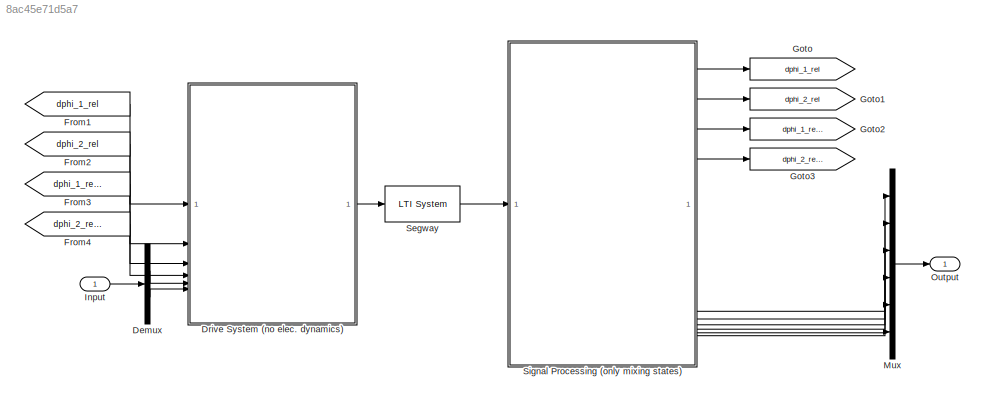
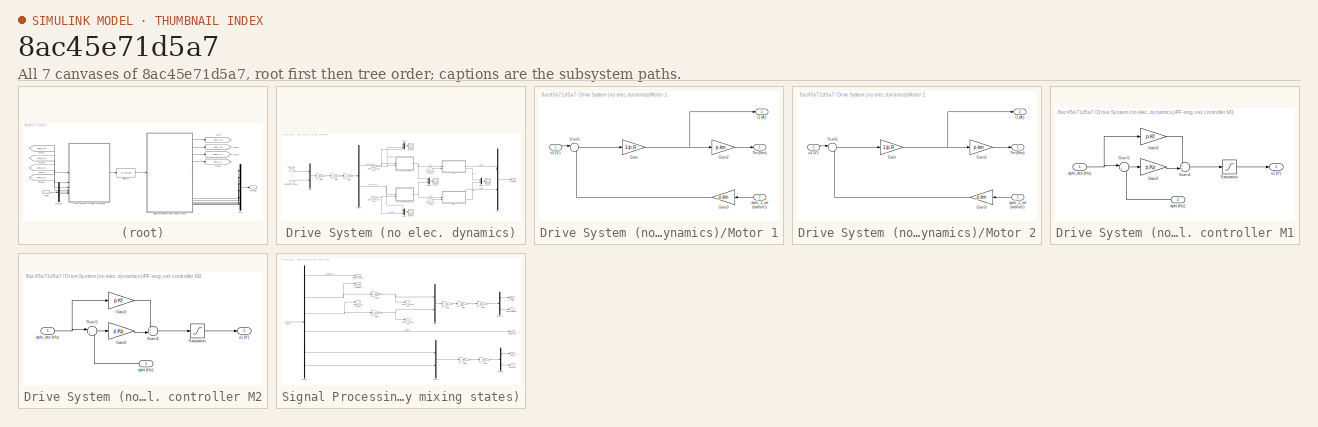
[diagram: thumbnail index - all 7 canvases of the model, root first then tree order]
MODEL slx_8ac45e71d5a7
KIND model
CONFIG AbsTol = auto
CONFIG EnableMultiTasking = off
CONFIG FixedStep = auto
CONFIG MaxStep = auto
CONFIG MinStep = auto
CONFIG RelTol = 1e-3
CONFIG SampleTimeConstraint = Unconstrained
CONFIG SolverName = VariableStepAuto
CONFIG StartTime = 0.0
CONFIG StopTime = 10.0
BLOCK [Demux] Demux
  Outputs = 2
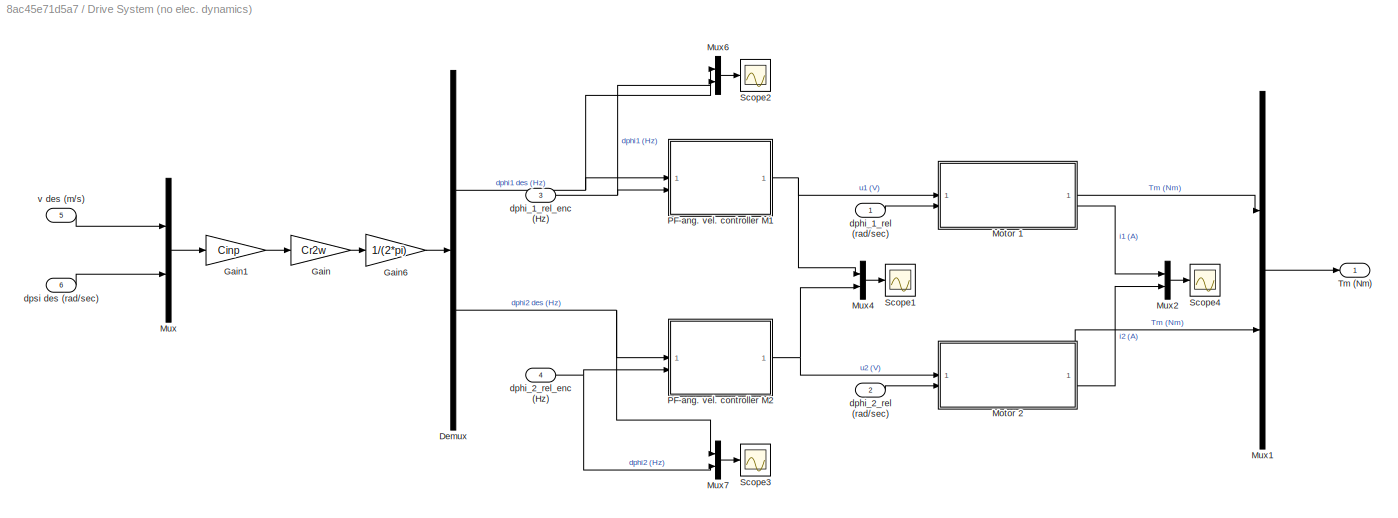
BLOCK [SubSystem] Drive System (no elec. dynamics)
BLOCK [Demux] Drive System (no elec. dynamics)/Demux
  Outputs = 2
BLOCK [Gain] Drive System (no elec. dynamics)/Gain
  Gain = Cr2w
  Multiplication = Matrix(K*u)
BLOCK [Gain] Drive System (no elec. dynamics)/Gain1
  Gain = Cinp
  Multiplication = Matrix(K*u)
BLOCK [Gain] Drive System (no elec. dynamics)/Gain6
  Gain = 1/(2*pi)
BLOCK [SubSystem] Drive System (no elec. dynamics)/Motor 1
BLOCK [Gain] Drive System (no elec. dynamics)/Motor 1/Gain
  Gain = 1/p.R
BLOCK [Gain] Drive System (no elec. dynamics)/Motor 1/Gain2
  Gain = p.km
BLOCK [Gain] Drive System (no elec. dynamics)/Motor 1/Gain3
  Gain = p.km
  NameLocation = top
BLOCK [Sum] Drive System (no elec. dynamics)/Motor 1/Sum5
  Inputs = |+-
BLOCK [Outport] Drive System (no elec. dynamics)/Motor 1/Tm (Nm)
BLOCK [Inport] Drive System (no elec. dynamics)/Motor 1/dphi_1_rel (rad//sec)
  Port = 2
BLOCK [Outport] Drive System (no elec. dynamics)/Motor 1/i1 (A)
  Port = 2
BLOCK [Inport] Drive System (no elec. dynamics)/Motor 1/u1 (V)
BLOCK [SubSystem] Drive System (no elec. dynamics)/Motor 2
BLOCK [Gain] Drive System (no elec. dynamics)/Motor 2/Gain
  Gain = 1/p.R
BLOCK [Gain] Drive System (no elec. dynamics)/Motor 2/Gain2
  Gain = p.km
BLOCK [Gain] Drive System (no elec. dynamics)/Motor 2/Gain3
  Gain = p.km
  NameLocation = top
BLOCK [Sum] Drive System (no elec. dynamics)/Motor 2/Sum5
  Inputs = |+-
BLOCK [Outport] Drive System (no elec. dynamics)/Motor 2/Tm (Nm)
BLOCK [Inport] Drive System (no elec. dynamics)/Motor 2/dphi_1_rel (rad//sec)
  Port = 2
BLOCK [Outport] Drive System (no elec. dynamics)/Motor 2/i1 (A)
  Port = 2
BLOCK [Inport] Drive System (no elec. dynamics)/Motor 2/u1 (V)
BLOCK [Mux] Drive System (no elec. dynamics)/Mux
  DisplayOption = bar
  Inputs = 2
BLOCK [Mux] Drive System (no elec. dynamics)/Mux1
  DisplayOption = bar
  Inputs = 2
BLOCK [Mux] Drive System (no elec. dynamics)/Mux2
  DisplayOption = bar
  Inputs = 2
BLOCK [Mux] Drive System (no elec. dynamics)/Mux4
  DisplayOption = bar
  Inputs = 2
BLOCK [Mux] Drive System (no elec. dynamics)/Mux6
  DisplayOption = bar
  Inputs = 2
BLOCK [Mux] Drive System (no elec. dynamics)/Mux7
  DisplayOption = bar
  Inputs = 2
BLOCK [SubSystem] Drive System (no elec. dynamics)/PF-ang. vel. controller M1
BLOCK [Gain] Drive System (no elec. dynamics)/PF-ang. vel. controller M1/Gain2
  Gain = p.Kp
BLOCK [Gain] Drive System (no elec. dynamics)/PF-ang. vel. controller M1/Gain3
  Gain = p.Kf
BLOCK [Saturate] Drive System (no elec. dynamics)/PF-ang. vel. controller M1/Saturation
  LowerLimit = p.u_min
  UpperLimit = p.u_max
BLOCK [Sum] Drive System (no elec. dynamics)/PF-ang. vel. controller M1/Sum4
  Inputs = ++|
BLOCK [Sum] Drive System (no elec. dynamics)/PF-ang. vel. controller M1/Sum5
  Inputs = |+-
BLOCK [Inport] Drive System (no elec. dynamics)/PF-ang. vel. controller M1/dphi (Hz)
  Port = 2
BLOCK [Inport] Drive System (no elec. dynamics)/PF-ang. vel. controller M1/dphi_des (Hz)
BLOCK [Outport] Drive System (no elec. dynamics)/PF-ang. vel. controller M1/u1 (V)
BLOCK [SubSystem] Drive System (no elec. dynamics)/PF-ang. vel. controller M2
BLOCK [Gain] Drive System (no elec. dynamics)/PF-ang. vel. controller M2/Gain2
  Gain = p.Kp
BLOCK [Gain] Drive System (no elec. dynamics)/PF-ang. vel. controller M2/Gain3
  Gain = p.Kf
BLOCK [Saturate] Drive System (no elec. dynamics)/PF-ang. vel. controller M2/Saturation
  LowerLimit = p.u_min
  UpperLimit = p.u_max
BLOCK [Sum] Drive System (no elec. dynamics)/PF-ang. vel. controller M2/Sum4
  Inputs = ++|
BLOCK [Sum] Drive System (no elec. dynamics)/PF-ang. vel. controller M2/Sum5
  Inputs = |+-
BLOCK [Inport] Drive System (no elec. dynamics)/PF-ang. vel. controller M2/dphi (Hz)
  Port = 2
BLOCK [Inport] Drive System (no elec. dynamics)/PF-ang. vel. controller M2/dphi_des (Hz)
BLOCK [Outport] Drive System (no elec. dynamics)/PF-ang. vel. controller M2/u1 (V)
BLOCK [Scope] Drive System (no elec. dynamics)/Scope1
  Floating = off
  NumInputPorts = 1
  ScopeSpecificationString = Simulink.scopes.TimeScopeBlockCfg('CurrentConfiguration', extmgr.ConfigurationSet(extmgr.Configuration('Core','General UI',true),extmgr.Configuration('Core','Source UI',true),extmgr.Configuration('Sources','WiredSimulink',true,'DataLoggingVariableName','ScopeData1'),extmgr.Configuration('Visuals','Time Domain',true,'SerializedDisplays',{struct('MinYLimReal','-10.00000','MaxYLimReal','10.00000','YL...<+1438ch>
BLOCK [Scope] Drive System (no elec. dynamics)/Scope2
  Floating = off
  NumInputPorts = 1
  ScopeSpecificationString = Simulink.scopes.TimeScopeBlockCfg('CurrentConfiguration', extmgr.ConfigurationSet(extmgr.Configuration('Core','General UI',true),extmgr.Configuration('Core','Source UI',true),extmgr.Configuration('Sources','WiredSimulink',true,'DataLoggingVariableName','ScopeData2'),extmgr.Configuration('Visuals','Time Domain',true,'SerializedDisplays',{struct('MinYLimReal','-0.41231','MaxYLimReal','1.15693','YLab...<+1434ch>
BLOCK [Scope] Drive System (no elec. dynamics)/Scope3
  Floating = off
  NumInputPorts = 1
  ScopeSpecificationString = Simulink.scopes.TimeScopeBlockCfg('CurrentConfiguration', extmgr.ConfigurationSet(extmgr.Configuration('Core','General UI',true),extmgr.Configuration('Core','Source UI',true),extmgr.Configuration('Sources','WiredSimulink',true,'DataLoggingVariableName','ScopeData3'),extmgr.Configuration('Visuals','Time Domain',true,'SerializedDisplays',{struct('MinYLimReal','-0.41232','MaxYLimReal','1.15692','YLab...<+1434ch>
BLOCK [Scope] Drive System (no elec. dynamics)/Scope4
  Floating = off
  NumInputPorts = 1
  ScopeSpecificationString = Simulink.scopes.TimeScopeBlockCfg('CurrentConfiguration', extmgr.ConfigurationSet(extmgr.Configuration('Core','General UI',true),extmgr.Configuration('Core','Source UI',true),extmgr.Configuration('Sources','WiredSimulink',true,'DataLoggingVariableName','ScopeData1'),extmgr.Configuration('Visuals','Time Domain',true,'SerializedDisplays',{struct('MinYLimReal','-11.7007','MaxYLimReal','43.5094','YLab...<+1422ch>
BLOCK [Outport] Drive System (no elec. dynamics)/Tm (Nm)
BLOCK [Inport] Drive System (no elec. dynamics)/dphi_1_rel (rad//sec)
BLOCK [Inport] Drive System (no elec. dynamics)/dphi_1_rel_enc (Hz)
  Port = 3
BLOCK [Inport] Drive System (no elec. dynamics)/dphi_2_rel (rad//sec)
  Port = 2
BLOCK [Inport] Drive System (no elec. dynamics)/dphi_2_rel_enc (Hz)
  Port = 4
BLOCK [Inport] Drive System (no elec. dynamics)/dpsi des (rad//sec)
  Port = 6
BLOCK [Inport] Drive System (no elec. dynamics)/v des (m//s)
  Port = 5
BLOCK [From] From1
  GotoTag = dphi_1_rel
BLOCK [From] From2
  GotoTag = dphi_2_rel
BLOCK [From] From3
  GotoTag = dphi_1_rel_enc
BLOCK [From] From4
  GotoTag = dphi_2_rel_enc
BLOCK [Goto] Goto
  GotoTag = dphi_1_rel
BLOCK [Goto] Goto1
  GotoTag = dphi_2_rel
BLOCK [Goto] Goto2
  GotoTag = dphi_1_rel_enc
BLOCK [Goto] Goto3
  GotoTag = dphi_2_rel_enc
BLOCK [Inport] Input
BLOCK [Mux] Mux
  DisplayOption = bar
  Inputs = 6
BLOCK [Outport] Output
BLOCK [Reference] Segway  REF=cstblocks/LTI System
  SourceBlock = cstblocks/LTI System
  SourceType = LTI Block
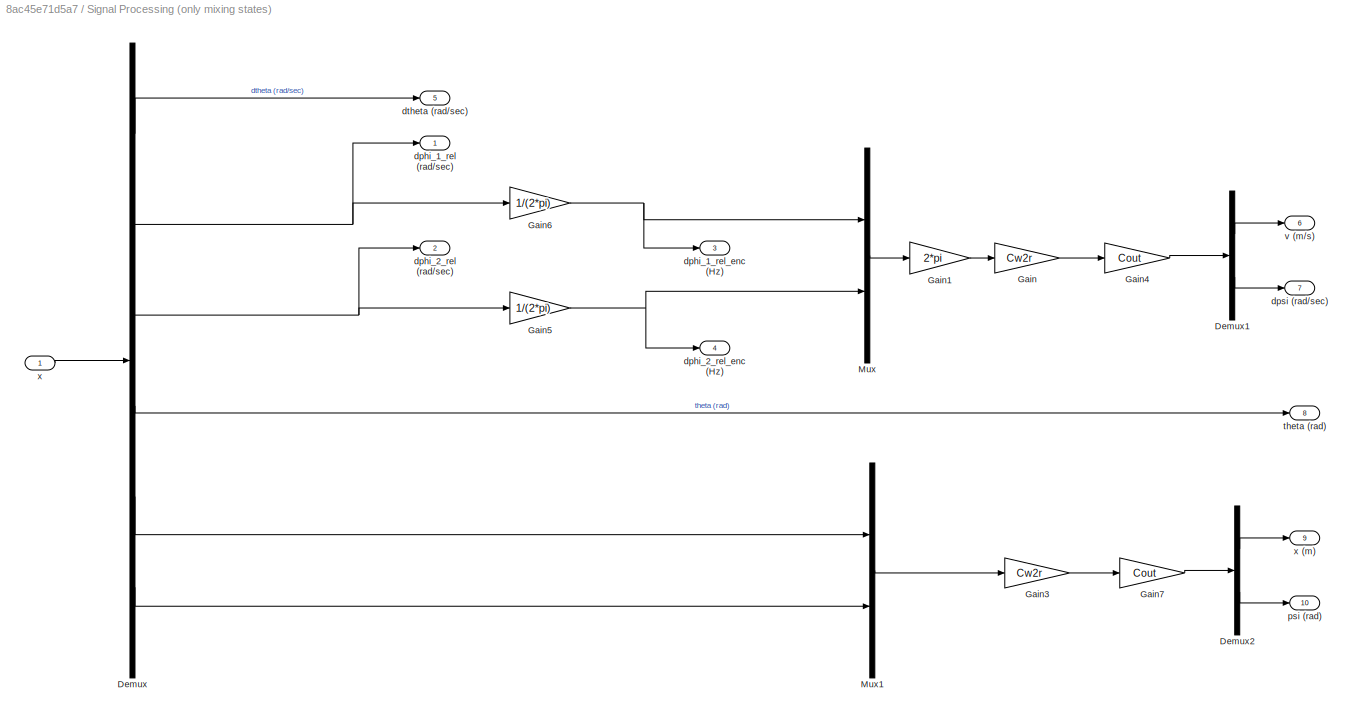
BLOCK [SubSystem] Signal Processing (only mixing states)
BLOCK [Demux] Signal Processing (only mixing states)/Demux
  Outputs = 6
BLOCK [Demux] Signal Processing (only mixing states)/Demux1
  Outputs = 2
BLOCK [Demux] Signal Processing (only mixing states)/Demux2
  Outputs = 2
BLOCK [Gain] Signal Processing (only mixing states)/Gain
  Gain = Cw2r
  Multiplication = Matrix(K*u)
BLOCK [Gain] Signal Processing (only mixing states)/Gain1
  Gain = 2*pi
BLOCK [Gain] Signal Processing (only mixing states)/Gain3
  Gain = Cw2r
  Multiplication = Matrix(K*u)
BLOCK [Gain] Signal Processing (only mixing states)/Gain4
  Gain = Cout
  Multiplication = Matrix(K*u)
BLOCK [Gain] Signal Processing (only mixing states)/Gain5
  Gain = 1/(2*pi)
BLOCK [Gain] Signal Processing (only mixing states)/Gain6
  Gain = 1/(2*pi)
BLOCK [Gain] Signal Processing (only mixing states)/Gain7
  Gain = Cout
  Multiplication = Matrix(K*u)
BLOCK [Mux] Signal Processing (only mixing states)/Mux
  DisplayOption = bar
  Inputs = 2
BLOCK [Mux] Signal Processing (only mixing states)/Mux1
  DisplayOption = bar
  Inputs = 2
BLOCK [Outport] Signal Processing (only mixing states)/dphi_1_rel (rad//sec)
BLOCK [Outport] Signal Processing (only mixing states)/dphi_1_rel_enc (Hz)
  Port = 3
BLOCK [Outport] Signal Processing (only mixing states)/dphi_2_rel (rad//sec)
  Port = 2
BLOCK [Outport] Signal Processing (only mixing states)/dphi_2_rel_enc (Hz)
  Port = 4
BLOCK [Outport] Signal Processing (only mixing states)/dpsi (rad//sec)
  Port = 7
BLOCK [Outport] Signal Processing (only mixing states)/dtheta (rad//sec)
  Port = 5
BLOCK [Outport] Signal Processing (only mixing states)/psi (rad)
  Port = 10
BLOCK [Outport] Signal Processing (only mixing states)/theta (rad) 
  Port = 8
BLOCK [Outport] Signal Processing (only mixing states)/v (m//s)
  Port = 6
BLOCK [Inport] Signal Processing (only mixing states)/x
BLOCK [Outport] Signal Processing (only mixing states)/x (m)
  Port = 9
LINE Demux:1 -> Drive System (no elec. dynamics):5
LINE Demux:2 -> Drive System (no elec. dynamics):6
NET Drive System (no elec. dynamics)/Demux:1 -> Drive System (no elec. dynamics)/Mux6:1, Drive System (no elec. dynamics)/PF-ang. vel. controller M1:1
NET Drive System (no elec. dynamics)/Demux:2 -> Drive System (no elec. dynamics)/Mux7:1, Drive System (no elec. dynamics)/PF-ang. vel. controller M2:1
LINE Drive System (no elec. dynamics)/Gain1:1 -> Drive System (no elec. dynamics)/Gain:1
LINE Drive System (no elec. dynamics)/Gain6:1 -> Drive System (no elec. dynamics)/Demux:1
LINE Drive System (no elec. dynamics)/Gain:1 -> Drive System (no elec. dynamics)/Gain6:1
LINE Drive System (no elec. dynamics)/Motor 1/Gain2:1 -> Drive System (no elec. dynamics)/Motor 1/Tm (Nm):1
LINE Drive System (no elec. dynamics)/Motor 1/Gain3:1 -> Drive System (no elec. dynamics)/Motor 1/Sum5:2
NET Drive System (no elec. dynamics)/Motor 1/Gain:1 -> Drive System (no elec. dynamics)/Motor 1/Gain2:1, Drive System (no elec. dynamics)/Motor 1/i1 (A):1
LINE Drive System (no elec. dynamics)/Motor 1/Sum5:1 -> Drive System (no elec. dynamics)/Motor 1/Gain:1
LINE Drive System (no elec. dynamics)/Motor 1/dphi_1_rel (rad//sec):1 -> Drive System (no elec. dynamics)/Motor 1/Gain3:1
LINE Drive System (no elec. dynamics)/Motor 1/u1 (V):1 -> Drive System (no elec. dynamics)/Motor 1/Sum5:1
LINE Drive System (no elec. dynamics)/Motor 1:1 -> Drive System (no elec. dynamics)/Mux1:1
LINE Drive System (no elec. dynamics)/Motor 1:2 -> Drive System (no elec. dynamics)/Mux2:1
LINE Drive System (no elec. dynamics)/Motor 2/Gain2:1 -> Drive System (no elec. dynamics)/Motor 2/Tm (Nm):1
LINE Drive System (no elec. dynamics)/Motor 2/Gain3:1 -> Drive System (no elec. dynamics)/Motor 2/Sum5:2
NET Drive System (no elec. dynamics)/Motor 2/Gain:1 -> Drive System (no elec. dynamics)/Motor 2/Gain2:1, Drive System (no elec. dynamics)/Motor 2/i1 (A):1
LINE Drive System (no elec. dynamics)/Motor 2/Sum5:1 -> Drive System (no elec. dynamics)/Motor 2/Gain:1
LINE Drive System (no elec. dynamics)/Motor 2/dphi_1_rel (rad//sec):1 -> Drive System (no elec. dynamics)/Motor 2/Gain3:1
LINE Drive System (no elec. dynamics)/Motor 2/u1 (V):1 -> Drive System (no elec. dynamics)/Motor 2/Sum5:1
LINE Drive System (no elec. dynamics)/Motor 2:1 -> Drive System (no elec. dynamics)/Mux1:2
LINE Drive System (no elec. dynamics)/Motor 2:2 -> Drive System (no elec. dynamics)/Mux2:2
LINE Drive System (no elec. dynamics)/Mux1:1 -> Drive System (no elec. dynamics)/Tm (Nm):1
LINE Drive System (no elec. dynamics)/Mux2:1 -> Drive System (no elec. dynamics)/Scope4:1
LINE Drive System (no elec. dynamics)/Mux4:1 -> Drive System (no elec. dynamics)/Scope1:1
LINE Drive System (no elec. dynamics)/Mux6:1 -> Drive System (no elec. dynamics)/Scope2:1
LINE Drive System (no elec. dynamics)/Mux7:1 -> Drive System (no elec. dynamics)/Scope3:1
LINE Drive System (no elec. dynamics)/Mux:1 -> Drive System (no elec. dynamics)/Gain1:1
LINE Drive System (no elec. dynamics)/PF-ang. vel. controller M1/Gain2:1 -> Drive System (no elec. dynamics)/PF-ang. vel. controller M1/Sum4:2
LINE Drive System (no elec. dynamics)/PF-ang. vel. controller M1/Gain3:1 -> Drive System (no elec. dynamics)/PF-ang. vel. controller M1/Sum4:1
LINE Drive System (no elec. dynamics)/PF-ang. vel. controller M1/Saturation:1 -> Drive System (no elec. dynamics)/PF-ang. vel. controller M1/u1 (V):1
LINE Drive System (no elec. dynamics)/PF-ang. vel. controller M1/Sum4:1 -> Drive System (no elec. dynamics)/PF-ang. vel. controller M1/Saturation:1
LINE Drive System (no elec. dynamics)/PF-ang. vel. controller M1/Sum5:1 -> Drive System (no elec. dynamics)/PF-ang. vel. controller M1/Gain2:1
LINE Drive System (no elec. dynamics)/PF-ang. vel. controller M1/dphi (Hz):1 -> Drive System (no elec. dynamics)/PF-ang. vel. controller M1/Sum5:2
NET Drive System (no elec. dynamics)/PF-ang. vel. controller M1/dphi_des (Hz):1 -> Drive System (no elec. dynamics)/PF-ang. vel. controller M1/Gain3:1, Drive System (no elec. dynamics)/PF-ang. vel. controller M1/Sum5:1
NET Drive System (no elec. dynamics)/PF-ang. vel. controller M1:1 -> Drive System (no elec. dynamics)/Motor 1:1, Drive System (no elec. dynamics)/Mux4:1
LINE Drive System (no elec. dynamics)/PF-ang. vel. controller M2/Gain2:1 -> Drive System (no elec. dynamics)/PF-ang. vel. controller M2/Sum4:2
LINE Drive System (no elec. dynamics)/PF-ang. vel. controller M2/Gain3:1 -> Drive System (no elec. dynamics)/PF-ang. vel. controller M2/Sum4:1
LINE Drive System (no elec. dynamics)/PF-ang. vel. controller M2/Saturation:1 -> Drive System (no elec. dynamics)/PF-ang. vel. controller M2/u1 (V):1
LINE Drive System (no elec. dynamics)/PF-ang. vel. controller M2/Sum4:1 -> Drive System (no elec. dynamics)/PF-ang. vel. controller M2/Saturation:1
LINE Drive System (no elec. dynamics)/PF-ang. vel. controller M2/Sum5:1 -> Drive System (no elec. dynamics)/PF-ang. vel. controller M2/Gain2:1
LINE Drive System (no elec. dynamics)/PF-ang. vel. controller M2/dphi (Hz):1 -> Drive System (no elec. dynamics)/PF-ang. vel. controller M2/Sum5:2
NET Drive System (no elec. dynamics)/PF-ang. vel. controller M2/dphi_des (Hz):1 -> Drive System (no elec. dynamics)/PF-ang. vel. controller M2/Gain3:1, Drive System (no elec. dynamics)/PF-ang. vel. controller M2/Sum5:1
NET Drive System (no elec. dynamics)/PF-ang. vel. controller M2:1 -> Drive System (no elec. dynamics)/Motor 2:1, Drive System (no elec. dynamics)/Mux4:2
LINE Drive System (no elec. dynamics)/dphi_1_rel (rad//sec):1 -> Drive System (no elec. dynamics)/Motor 1:2
NET Drive System (no elec. dynamics)/dphi_1_rel_enc (Hz):1 -> Drive System (no elec. dynamics)/Mux6:2, Drive System (no elec. dynamics)/PF-ang. vel. controller M1:2
LINE Drive System (no elec. dynamics)/dphi_2_rel (rad//sec):1 -> Drive System (no elec. dynamics)/Motor 2:2
NET Drive System (no elec. dynamics)/dphi_2_rel_enc (Hz):1 -> Drive System (no elec. dynamics)/Mux7:2, Drive System (no elec. dynamics)/PF-ang. vel. controller M2:2
LINE Drive System (no elec. dynamics)/dpsi des (rad//sec):1 -> Drive System (no elec. dynamics)/Mux:2
LINE Drive System (no elec. dynamics)/v des (m//s):1 -> Drive System (no elec. dynamics)/Mux:1
LINE Drive System (no elec. dynamics):1 -> Segway:1
LINE From1:1 -> Drive System (no elec. dynamics):1
LINE From2:1 -> Drive System (no elec. dynamics):2
LINE From3:1 -> Drive System (no elec. dynamics):3
LINE From4:1 -> Drive System (no elec. dynamics):4
LINE Input:1 -> Demux:1
LINE Mux:1 -> Output:1
LINE Segway:1 -> Signal Processing (only mixing states):1
LINE Signal Processing (only mixing states)/Demux1:1 -> Signal Processing (only mixing states)/v (m//s):1
LINE Signal Processing (only mixing states)/Demux1:2 -> Signal Processing (only mixing states)/dpsi (rad//sec):1
LINE Signal Processing (only mixing states)/Demux2:1 -> Signal Processing (only mixing states)/x (m):1
LINE Signal Processing (only mixing states)/Demux2:2 -> Signal Processing (only mixing states)/psi (rad):1
LINE Signal Processing (only mixing states)/Demux:1 -> Signal Processing (only mixing states)/dtheta (rad//sec):1
NET Signal Processing (only mixing states)/Demux:2 -> Signal Processing (only mixing states)/Gain6:1, Signal Processing (only mixing states)/dphi_1_rel (rad//sec):1
NET Signal Processing (only mixing states)/Demux:3 -> Signal Processing (only mixing states)/Gain5:1, Signal Processing (only mixing states)/dphi_2_rel (rad//sec):1
LINE Signal Processing (only mixing states)/Demux:4 -> Signal Processing (only mixing states)/theta (rad) :1
LINE Signal Processing (only mixing states)/Demux:5 -> Signal Processing (only mixing states)/Mux1:1
LINE Signal Processing (only mixing states)/Demux:6 -> Signal Processing (only mixing states)/Mux1:2
LINE Signal Processing (only mixing states)/Gain1:1 -> Signal Processing (only mixing states)/Gain:1
LINE Signal Processing (only mixing states)/Gain3:1 -> Signal Processing (only mixing states)/Gain7:1
LINE Signal Processing (only mixing states)/Gain4:1 -> Signal Processing (only mixing states)/Demux1:1
NET Signal Processing (only mixing states)/Gain5:1 -> Signal Processing (only mixing states)/Mux:2, Signal Processing (only mixing states)/dphi_2_rel_enc (Hz):1
NET Signal Processing (only mixing states)/Gain6:1 -> Signal Processing (only mixing states)/Mux:1, Signal Processing (only mixing states)/dphi_1_rel_enc (Hz):1
LINE Signal Processing (only mixing states)/Gain7:1 -> Signal Processing (only mixing states)/Demux2:1
LINE Signal Processing (only mixing states)/Gain:1 -> Signal Processing (only mixing states)/Gain4:1
LINE Signal Processing (only mixing states)/Mux1:1 -> Signal Processing (only mixing states)/Gain3:1
LINE Signal Processing (only mixing states)/Mux:1 -> Signal Processing (only mixing states)/Gain1:1
LINE Signal Processing (only mixing states)/x:1 -> Signal Processing (only mixing states)/Demux:1
LINE Signal Processing (only mixing states):1 -> Goto:1
LINE Signal Processing (only mixing states):10 -> Mux:6
LINE Signal Processing (only mixing states):2 -> Goto1:1
LINE Signal Processing (only mixing states):3 -> Goto2:1
LINE Signal Processing (only mixing states):4 -> Goto3:1
LINE Signal Processing (only mixing states):5 -> Mux:1
LINE Signal Processing (only mixing states):6 -> Mux:2
LINE Signal Processing (only mixing states):7 -> Mux:3
LINE Signal Processing (only mixing states):8 -> Mux:4
LINE Signal Processing (only mixing states):9 -> Mux:5
note: NET lines group one-source signal fan-out (src -> all destinations, sorted); 1:1 wires keep LINE
